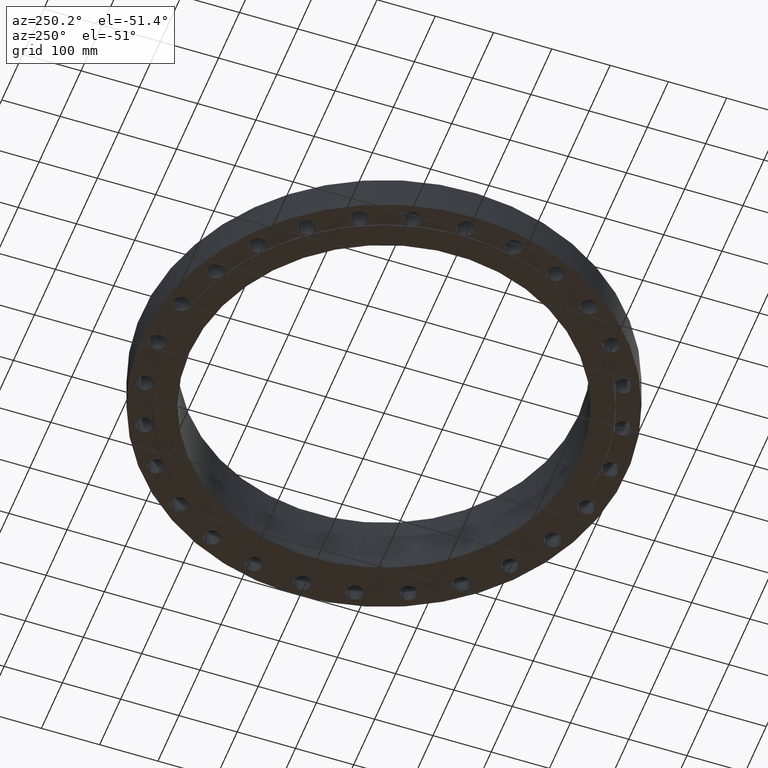
[diagram: clean part render]
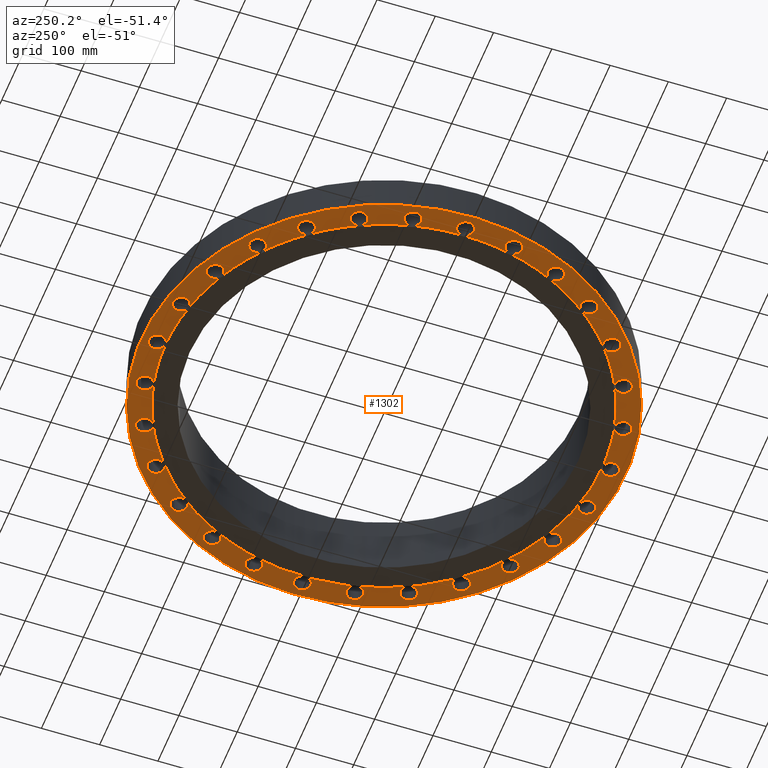
[diagram: same view with one face highlighted and labeled with its STEP entity id]
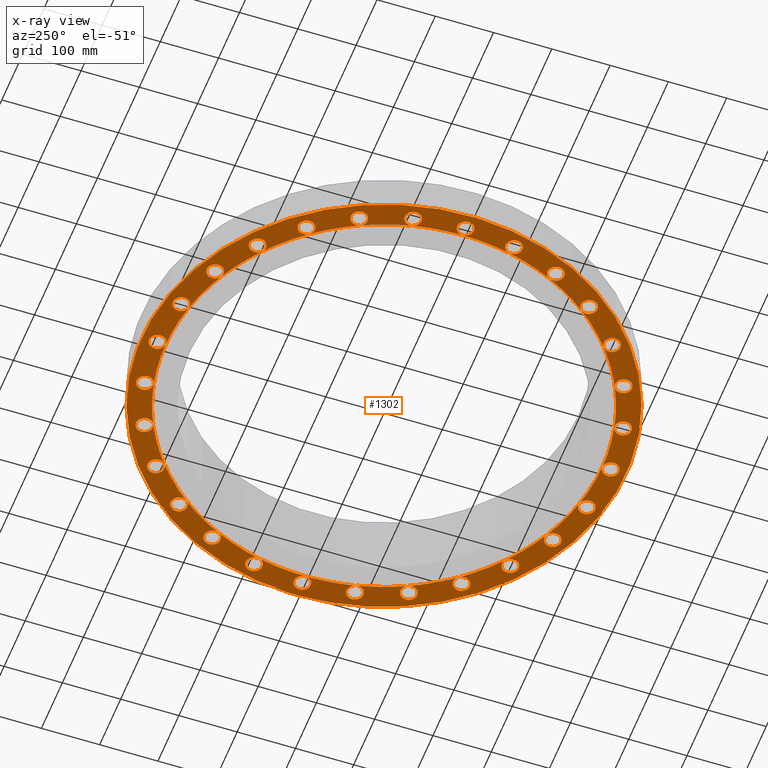
[diagram: x-ray of the same camera — body ghosted, the highlighted face saturated]
A machine part, auxiliary view. The second image highlights one B-rep face of the part: STEP entity #1302.
The next image is the same camera in x-ray: the body ghosted, the highlighted face saturated — about 0% of this face is hidden behind the body in this view.
In plain terms, the highlighted planar face has unit normal (0, 0, -1).
Its self-contained STEP definition (entity closure, byte-faithful):
#51=AXIS2_PLACEMENT_3D('Circle Axis2P3D',#49,#50,$) ;
#77=AXIS2_PLACEMENT_3D('Circle Axis2P3D',#75,#76,$) ;
#84=AXIS2_PLACEMENT_3D('Circle Axis2P3D',#82,#83,$) ;
#107=AXIS2_PLACEMENT_3D('Circle Axis2P3D',#105,#106,$) ;
#142=AXIS2_PLACEMENT_3D('Circle Axis2P3D',#140,#141,$) ;
#413=AXIS2_PLACEMENT_3D('Circle Axis2P3D',#411,#412,$) ;
#420=AXIS2_PLACEMENT_3D('Circle Axis2P3D',#418,#419,$) ;
#427=AXIS2_PLACEMENT_3D('Circle Axis2P3D',#425,#426,$) ;
#434=AXIS2_PLACEMENT_3D('Circle Axis2P3D',#432,#433,$) ;
#441=AXIS2_PLACEMENT_3D('Circle Axis2P3D',#439,#440,$) ;
#446=AXIS2_PLACEMENT_3D('Circle Axis2P3D',#444,#445,$) ;
#453=AXIS2_PLACEMENT_3D('Circle Axis2P3D',#451,#452,$) ;
#460=AXIS2_PLACEMENT_3D('Circle Axis2P3D',#458,#459,$) ;
#467=AXIS2_PLACEMENT_3D('Circle Axis2P3D',#465,#466,$) ;
#474=AXIS2_PLACEMENT_3D('Circle Axis2P3D',#472,#473,$) ;
#481=AXIS2_PLACEMENT_3D('Circle Axis2P3D',#479,#480,$) ;
#488=AXIS2_PLACEMENT_3D('Circle Axis2P3D',#486,#487,$) ;
#495=AXIS2_PLACEMENT_3D('Circle Axis2P3D',#493,#494,$) ;
#502=AXIS2_PLACEMENT_3D('Circle Axis2P3D',#500,#501,$) ;
#509=AXIS2_PLACEMENT_3D('Circle Axis2P3D',#507,#508,$) ;
#542=AXIS2_PLACEMENT_3D('Circle Axis2P3D',#540,#541,$) ;
#549=AXIS2_PLACEMENT_3D('Circle Axis2P3D',#547,#548,$) ;
#556=AXIS2_PLACEMENT_3D('Circle Axis2P3D',#554,#555,$) ;
#563=AXIS2_PLACEMENT_3D('Circle Axis2P3D',#561,#562,$) ;
#570=AXIS2_PLACEMENT_3D('Circle Axis2P3D',#568,#569,$) ;
#577=AXIS2_PLACEMENT_3D('Circle Axis2P3D',#575,#576,$) ;
#584=AXIS2_PLACEMENT_3D('Circle Axis2P3D',#582,#583,$) ;
#591=AXIS2_PLACEMENT_3D('Circle Axis2P3D',#589,#590,$) ;
#598=AXIS2_PLACEMENT_3D('Circle Axis2P3D',#596,#597,$) ;
#605=AXIS2_PLACEMENT_3D('Circle Axis2P3D',#603,#604,$) ;
#612=AXIS2_PLACEMENT_3D('Circle Axis2P3D',#610,#611,$) ;
#619=AXIS2_PLACEMENT_3D('Circle Axis2P3D',#617,#618,$) ;
#626=AXIS2_PLACEMENT_3D('Circle Axis2P3D',#624,#625,$) ;
#633=AXIS2_PLACEMENT_3D('Circle Axis2P3D',#631,#632,$) ;
#640=AXIS2_PLACEMENT_3D('Circle Axis2P3D',#638,#639,$) ;
#667=AXIS2_PLACEMENT_3D('Plane Axis2P3D',#664,#665,#666) ;
#675=AXIS2_PLACEMENT_3D('Circle Axis2P3D',#673,#674,$) ;
#682=AXIS2_PLACEMENT_3D('Circle Axis2P3D',#680,#681,$) ;
#689=AXIS2_PLACEMENT_3D('Circle Axis2P3D',#687,#688,$) ;
#694=AXIS2_PLACEMENT_3D('Circle Axis2P3D',#692,#693,$) ;
#701=AXIS2_PLACEMENT_3D('Circle Axis2P3D',#699,#700,$) ;
#708=AXIS2_PLACEMENT_3D('Circle Axis2P3D',#706,#707,$) ;
#713=AXIS2_PLACEMENT_3D('Circle Axis2P3D',#711,#712,$) ;
#720=AXIS2_PLACEMENT_3D('Circle Axis2P3D',#718,#719,$) ;
#727=AXIS2_PLACEMENT_3D('Circle Axis2P3D',#725,#726,$) ;
#732=AXIS2_PLACEMENT_3D('Circle Axis2P3D',#730,#731,$) ;
#739=AXIS2_PLACEMENT_3D('Circle Axis2P3D',#737,#738,$) ;
#746=AXIS2_PLACEMENT_3D('Circle Axis2P3D',#744,#745,$) ;
#751=AXIS2_PLACEMENT_3D('Circle Axis2P3D',#749,#750,$) ;
#758=AXIS2_PLACEMENT_3D('Circle Axis2P3D',#756,#757,$) ;
#765=AXIS2_PLACEMENT_3D('Circle Axis2P3D',#763,#764,$) ;
#770=AXIS2_PLACEMENT_3D('Circle Axis2P3D',#768,#769,$) ;
#777=AXIS2_PLACEMENT_3D('Circle Axis2P3D',#775,#776,$) ;
#784=AXIS2_PLACEMENT_3D('Circle Axis2P3D',#782,#783,$) ;
#789=AXIS2_PLACEMENT_3D('Circle Axis2P3D',#787,#788,$) ;
#796=AXIS2_PLACEMENT_3D('Circle Axis2P3D',#794,#795,$) ;
#803=AXIS2_PLACEMENT_3D('Circle Axis2P3D',#801,#802,$) ;
#808=AXIS2_PLACEMENT_3D('Circle Axis2P3D',#806,#807,$) ;
#815=AXIS2_PLACEMENT_3D('Circle Axis2P3D',#813,#814,$) ;
#822=AXIS2_PLACEMENT_3D('Circle Axis2P3D',#820,#821,$) ;
#827=AXIS2_PLACEMENT_3D('Circle Axis2P3D',#825,#826,$) ;
#834=AXIS2_PLACEMENT_3D('Circle Axis2P3D',#832,#833,$) ;
#841=AXIS2_PLACEMENT_3D('Circle Axis2P3D',#839,#840,$) ;
#846=AXIS2_PLACEMENT_3D('Circle Axis2P3D',#844,#845,$) ;
#853=AXIS2_PLACEMENT_3D('Circle Axis2P3D',#851,#852,$) ;
#860=AXIS2_PLACEMENT_3D('Circle Axis2P3D',#858,#859,$) ;
#865=AXIS2_PLACEMENT_3D('Circle Axis2P3D',#863,#864,$) ;
#872=AXIS2_PLACEMENT_3D('Circle Axis2P3D',#870,#871,$) ;
#879=AXIS2_PLACEMENT_3D('Circle Axis2P3D',#877,#878,$) ;
#884=AXIS2_PLACEMENT_3D('Circle Axis2P3D',#882,#883,$) ;
#891=AXIS2_PLACEMENT_3D('Circle Axis2P3D',#889,#890,$) ;
#898=AXIS2_PLACEMENT_3D('Circle Axis2P3D',#896,#897,$) ;
#903=AXIS2_PLACEMENT_3D('Circle Axis2P3D',#901,#902,$) ;
#910=AXIS2_PLACEMENT_3D('Circle Axis2P3D',#908,#909,$) ;
#917=AXIS2_PLACEMENT_3D('Circle Axis2P3D',#915,#916,$) ;
#922=AXIS2_PLACEMENT_3D('Circle Axis2P3D',#920,#921,$) ;
#929=AXIS2_PLACEMENT_3D('Circle Axis2P3D',#927,#928,$) ;
#936=AXIS2_PLACEMENT_3D('Circle Axis2P3D',#934,#935,$) ;
#941=AXIS2_PLACEMENT_3D('Circle Axis2P3D',#939,#940,$) ;
#948=AXIS2_PLACEMENT_3D('Circle Axis2P3D',#946,#947,$) ;
#955=AXIS2_PLACEMENT_3D('Circle Axis2P3D',#953,#954,$) ;
#960=AXIS2_PLACEMENT_3D('Circle Axis2P3D',#958,#959,$) ;
#967=AXIS2_PLACEMENT_3D('Circle Axis2P3D',#965,#966,$) ;
#974=AXIS2_PLACEMENT_3D('Circle Axis2P3D',#972,#973,$) ;
#979=AXIS2_PLACEMENT_3D('Circle Axis2P3D',#977,#978,$) ;
#986=AXIS2_PLACEMENT_3D('Circle Axis2P3D',#984,#985,$) ;
#993=AXIS2_PLACEMENT_3D('Circle Axis2P3D',#991,#992,$) ;
#998=AXIS2_PLACEMENT_3D('Circle Axis2P3D',#996,#997,$) ;
#1005=AXIS2_PLACEMENT_3D('Circle Axis2P3D',#1003,#1004,$) ;
#1012=AXIS2_PLACEMENT_3D('Circle Axis2P3D',#1010,#1011,$) ;
#1017=AXIS2_PLACEMENT_3D('Circle Axis2P3D',#1015,#1016,$) ;
#1024=AXIS2_PLACEMENT_3D('Circle Axis2P3D',#1022,#1023,$) ;
#1031=AXIS2_PLACEMENT_3D('Circle Axis2P3D',#1029,#1030,$) ;
#1036=AXIS2_PLACEMENT_3D('Circle Axis2P3D',#1034,#1035,$) ;
#1043=AXIS2_PLACEMENT_3D('Circle Axis2P3D',#1041,#1042,$) ;
#1050=AXIS2_PLACEMENT_3D('Circle Axis2P3D',#1048,#1049,$) ;
#1055=AXIS2_PLACEMENT_3D('Circle Axis2P3D',#1053,#1054,$) ;
#1062=AXIS2_PLACEMENT_3D('Circle Axis2P3D',#1060,#1061,$) ;
#1069=AXIS2_PLACEMENT_3D('Circle Axis2P3D',#1067,#1068,$) ;
#1074=AXIS2_PLACEMENT_3D('Circle Axis2P3D',#1072,#1073,$) ;
#1081=AXIS2_PLACEMENT_3D('Circle Axis2P3D',#1079,#1080,$) ;
#1088=AXIS2_PLACEMENT_3D('Circle Axis2P3D',#1086,#1087,$) ;
#1093=AXIS2_PLACEMENT_3D('Circle Axis2P3D',#1091,#1092,$) ;
#1100=AXIS2_PLACEMENT_3D('Circle Axis2P3D',#1098,#1099,$) ;
#1107=AXIS2_PLACEMENT_3D('Circle Axis2P3D',#1105,#1106,$) ;
#1112=AXIS2_PLACEMENT_3D('Circle Axis2P3D',#1110,#1111,$) ;
#1119=AXIS2_PLACEMENT_3D('Circle Axis2P3D',#1117,#1118,$) ;
#1126=AXIS2_PLACEMENT_3D('Circle Axis2P3D',#1124,#1125,$) ;
#1131=AXIS2_PLACEMENT_3D('Circle Axis2P3D',#1129,#1130,$) ;
#1138=AXIS2_PLACEMENT_3D('Circle Axis2P3D',#1136,#1137,$) ;
#1145=AXIS2_PLACEMENT_3D('Circle Axis2P3D',#1143,#1144,$) ;
#1150=AXIS2_PLACEMENT_3D('Circle Axis2P3D',#1148,#1149,$) ;
#1157=AXIS2_PLACEMENT_3D('Circle Axis2P3D',#1155,#1156,$) ;
#1164=AXIS2_PLACEMENT_3D('Circle Axis2P3D',#1162,#1163,$) ;
#1169=AXIS2_PLACEMENT_3D('Circle Axis2P3D',#1167,#1168,$) ;
#1176=AXIS2_PLACEMENT_3D('Circle Axis2P3D',#1174,#1175,$) ;
#1183=AXIS2_PLACEMENT_3D('Circle Axis2P3D',#1181,#1182,$) ;
#44=CARTESIAN_POINT('Vertex',(14.8191658526,0.270875429312,-2.79741234551E-016)) ;
#49=CARTESIAN_POINT('Axis2P3D Location',(15.3150000001,0.,0.)) ;
#53=CARTESIAN_POINT('Vertex',(15.8108341475,-0.270875429312,-2.79741234551E-016)) ;
#75=CARTESIAN_POINT('Axis2P3D Location',(15.3150000001,0.,0.)) ;
#79=CARTESIAN_POINT('Vertex',(14.7500000001,-9.48792363313E-015,1.95818864186E-015)) ;
#82=CARTESIAN_POINT('Axis2P3D Location',(15.3150000001,0.,0.)) ;
#105=CARTESIAN_POINT('Axis2P3D Location',(0.,0.,1.95818864186E-015)) ;
#109=CARTESIAN_POINT('Vertex',(-7.85059319468,-14.370414451,1.95818864186E-015)) ;
#111=CARTESIAN_POINT('Vertex',(7.85059319468,14.370414451,1.95818864186E-015)) ;
#140=CARTESIAN_POINT('Axis2P3D Location',(0.,0.,1.95818864186E-015)) ;
#408=CARTESIAN_POINT('Vertex',(7.07152669444,12.9443427879,1.95818864186E-015)) ;
#411=CARTESIAN_POINT('Axis2P3D Location',(0.,0.,1.95818864186E-015)) ;
#415=CARTESIAN_POINT('Vertex',(9.19647457745,11.5320143664,0.)) ;
#418=CARTESIAN_POINT('Axis2P3D Location',(0.,0.,1.95818864186E-015)) ;
#422=CARTESIAN_POINT('Vertex',(11.5320143664,9.19647457745,0.)) ;
#425=CARTESIAN_POINT('Axis2P3D Location',(0.,0.,1.95818864186E-015)) ;
#429=CARTESIAN_POINT('Vertex',(13.2892908016,6.39978515201,0.)) ;
#432=CARTESIAN_POINT('Axis2P3D Location',(0.,0.,1.95818864186E-015)) ;
#436=CARTESIAN_POINT('Vertex',(14.3801867047,3.28218377587,0.)) ;
#439=CARTESIAN_POINT('Axis2P3D Location',(0.,0.,1.95818864186E-015)) ;
#444=CARTESIAN_POINT('Axis2P3D Location',(0.,0.,1.95818864186E-015)) ;
#448=CARTESIAN_POINT('Vertex',(14.3801867047,-3.28218377587,0.)) ;
#451=CARTESIAN_POINT('Axis2P3D Location',(0.,0.,1.95818864186E-015)) ;
#455=CARTESIAN_POINT('Vertex',(13.2892908016,-6.39978515201,0.)) ;
#458=CARTESIAN_POINT('Axis2P3D Location',(0.,0.,1.95818864186E-015)) ;
#462=CARTESIAN_POINT('Vertex',(11.5320143664,-9.19647457745,0.)) ;
#465=CARTESIAN_POINT('Axis2P3D Location',(0.,0.,1.95818864186E-015)) ;
#469=CARTESIAN_POINT('Vertex',(9.19647457745,-11.5320143664,0.)) ;
#472=CARTESIAN_POINT('Axis2P3D Location',(0.,0.,1.95818864186E-015)) ;
#476=CARTESIAN_POINT('Vertex',(6.39978515201,-13.2892908016,0.)) ;
#479=CARTESIAN_POINT('Axis2P3D Location',(0.,0.,1.95818864186E-015)) ;
#483=CARTESIAN_POINT('Vertex',(3.28218377587,-14.3801867047,0.)) ;
#486=CARTESIAN_POINT('Axis2P3D Location',(0.,0.,1.95818864186E-015)) ;
#490=CARTESIAN_POINT('Vertex',(3.32304130702E-015,-14.7500000001,0.)) ;
#493=CARTESIAN_POINT('Axis2P3D Location',(0.,0.,1.95818864186E-015)) ;
#497=CARTESIAN_POINT('Vertex',(-3.28218377587,-14.3801867047,0.)) ;
#500=CARTESIAN_POINT('Axis2P3D Location',(0.,0.,1.95818864186E-015)) ;
#504=CARTESIAN_POINT('Vertex',(-6.39978515201,-13.2892908016,0.)) ;
#507=CARTESIAN_POINT('Axis2P3D Location',(0.,0.,1.95818864186E-015)) ;
#511=CARTESIAN_POINT('Vertex',(-7.07152669444,-12.9443427879,1.95818864186E-015)) ;
#540=CARTESIAN_POINT('Axis2P3D Location',(0.,0.,1.95818864186E-015)) ;
#544=CARTESIAN_POINT('Vertex',(-9.19647457745,-11.5320143664,0.)) ;
#547=CARTESIAN_POINT('Axis2P3D Location',(0.,0.,1.95818864186E-015)) ;
#551=CARTESIAN_POINT('Vertex',(-11.5320143664,-9.19647457745,0.)) ;
#554=CARTESIAN_POINT('Axis2P3D Location',(0.,0.,1.95818864186E-015)) ;
#558=CARTESIAN_POINT('Vertex',(-13.2892908016,-6.39978515201,0.)) ;
#561=CARTESIAN_POINT('Axis2P3D Location',(0.,0.,1.95818864186E-015)) ;
#565=CARTESIAN_POINT('Vertex',(-14.3801867047,-3.28218377587,0.)) ;
#568=CARTESIAN_POINT('Axis2P3D Location',(0.,0.,1.95818864186E-015)) ;
#572=CARTESIAN_POINT('Vertex',(-14.7500000001,-8.95171950564E-015,0.)) ;
#575=CARTESIAN_POINT('Axis2P3D Location',(0.,0.,1.95818864186E-015)) ;
#579=CARTESIAN_POINT('Vertex',(-14.3801867047,3.28218377587,0.)) ;
#582=CARTESIAN_POINT('Axis2P3D Location',(0.,0.,1.95818864186E-015)) ;
#586=CARTESIAN_POINT('Vertex',(-13.2892908016,6.39978515201,0.)) ;
#589=CARTESIAN_POINT('Axis2P3D Location',(0.,0.,1.95818864186E-015)) ;
#593=CARTESIAN_POINT('Vertex',(-11.5320143664,9.19647457745,0.)) ;
#596=CARTESIAN_POINT('Axis2P3D Location',(0.,0.,1.95818864186E-015)) ;
#600=CARTESIAN_POINT('Vertex',(-9.19647457745,11.5320143664,0.)) ;
#603=CARTESIAN_POINT('Axis2P3D Location',(0.,0.,1.95818864186E-015)) ;
#607=CARTESIAN_POINT('Vertex',(-6.39978515201,13.2892908016,0.)) ;
#610=CARTESIAN_POINT('Axis2P3D Location',(0.,0.,1.95818864186E-015)) ;
#614=CARTESIAN_POINT('Vertex',(-3.28218377587,14.3801867047,0.)) ;
#617=CARTESIAN_POINT('Axis2P3D Location',(0.,0.,1.95818864186E-015)) ;
#621=CARTESIAN_POINT('Vertex',(-2.00728685406E-015,14.7500000001,0.)) ;
#624=CARTESIAN_POINT('Axis2P3D Location',(0.,0.,1.95818864186E-015)) ;
#628=CARTESIAN_POINT('Vertex',(3.28218377587,14.3801867047,0.)) ;
#631=CARTESIAN_POINT('Axis2P3D Location',(0.,0.,1.95818864186E-015)) ;
#635=CARTESIAN_POINT('Vertex',(6.39978515201,13.2892908016,0.)) ;
#638=CARTESIAN_POINT('Axis2P3D Location',(0.,0.,1.95818864186E-015)) ;
#664=CARTESIAN_POINT('Axis2P3D Location',(0.,14.7500000001,0.)) ;
#673=CARTESIAN_POINT('Axis2P3D Location',(13.798338212,-6.64492946461,0.)) ;
#677=CARTESIAN_POINT('Vertex',(14.1275408984,-7.10411416739,-2.79741234551E-016)) ;
#680=CARTESIAN_POINT('Axis2P3D Location',(13.798338212,-6.64492946461,0.)) ;
#684=CARTESIAN_POINT('Vertex',(13.4691355256,-6.18574476184,0.)) ;
#687=CARTESIAN_POINT('Axis2P3D Location',(13.798338212,-6.64492946461,0.)) ;
#692=CARTESIAN_POINT('Axis2P3D Location',(14.9310209751,-3.40790810355,0.)) ;
#696=CARTESIAN_POINT('Vertex',(15.3541480718,-3.7823255979,-2.79741234551E-016)) ;
#699=CARTESIAN_POINT('Axis2P3D Location',(14.9310209751,-3.40790810355,0.)) ;
#703=CARTESIAN_POINT('Vertex',(14.5078938785,-3.03349060921,0.)) ;
#706=CARTESIAN_POINT('Axis2P3D Location',(14.9310209751,-3.40790810355,0.)) ;
#711=CARTESIAN_POINT('Axis2P3D Location',(14.9310209751,3.40790810355,0.)) ;
#715=CARTESIAN_POINT('Vertex',(15.4746989788,3.25415756438,-2.79741234551E-016)) ;
#718=CARTESIAN_POINT('Axis2P3D Location',(14.9310209751,3.40790810355,0.)) ;
#722=CARTESIAN_POINT('Vertex',(14.3873429714,3.56165864273,0.)) ;
#725=CARTESIAN_POINT('Axis2P3D Location',(14.9310209751,3.40790810355,0.)) ;
#730=CARTESIAN_POINT('Axis2P3D Location',(13.798338212,6.64492946461,0.)) ;
#734=CARTESIAN_POINT('Vertex',(14.3625977866,6.61601350961,-2.79741234551E-016)) ;
#737=CARTESIAN_POINT('Axis2P3D Location',(13.798338212,6.64492946461,0.)) ;
#741=CARTESIAN_POINT('Vertex',(13.2340786374,6.67384541962,0.)) ;
#744=CARTESIAN_POINT('Axis2P3D Location',(13.798338212,6.64492946461,0.)) ;
#749=CARTESIAN_POINT('Axis2P3D Location',(11.973749154,9.5487463155,0.)) ;
#753=CARTESIAN_POINT('Vertex',(12.5302959684,9.6461149114,-2.79741234551E-016)) ;
#756=CARTESIAN_POINT('Axis2P3D Location',(11.973749154,9.5487463155,0.)) ;
#760=CARTESIAN_POINT('Vertex',(11.4172023397,9.45137771961,0.)) ;
#763=CARTESIAN_POINT('Axis2P3D Location',(11.973749154,9.5487463155,0.)) ;
#768=CARTESIAN_POINT('Axis2P3D Location',(9.5487463155,11.973749154,0.)) ;
#772=CARTESIAN_POINT('Vertex',(10.0696727883,12.1925198329,-2.79741234551E-016)) ;
#775=CARTESIAN_POINT('Axis2P3D Location',(9.5487463155,11.973749154,0.)) ;
#779=CARTESIAN_POINT('Vertex',(9.02781984268,11.7549784752,0.)) ;
#782=CARTESIAN_POINT('Axis2P3D Location',(9.5487463155,11.973749154,0.)) ;
#787=CARTESIAN_POINT('Axis2P3D Location',(6.64492946461,13.798338212,0.)) ;
#791=CARTESIAN_POINT('Vertex',(7.10411416739,14.1275408984,-2.79741234551E-016)) ;
#794=CARTESIAN_POINT('Axis2P3D Location',(6.64492946461,13.798338212,0.)) ;
#798=CARTESIAN_POINT('Vertex',(6.18574476184,13.4691355256,0.)) ;
#801=CARTESIAN_POINT('Axis2P3D Location',(6.64492946461,13.798338212,0.)) ;
#806=CARTESIAN_POINT('Axis2P3D Location',(3.40790810355,14.9310209751,0.)) ;
#810=CARTESIAN_POINT('Vertex',(3.7823255979,15.3541480718,-2.79741234551E-016)) ;
#813=CARTESIAN_POINT('Axis2P3D Location',(3.40790810355,14.9310209751,0.)) ;
#817=CARTESIAN_POINT('Vertex',(3.03349060921,14.5078938785,0.)) ;
#820=CARTESIAN_POINT('Axis2P3D Location',(3.40790810355,14.9310209751,0.)) ;
#825=CARTESIAN_POINT('Axis2P3D Location',(-1.67844740731E-015,15.3150000001,0.)) ;
#829=CARTESIAN_POINT('Vertex',(0.270875429312,15.8108341475,-2.79741234551E-016)) ;
#832=CARTESIAN_POINT('Axis2P3D Location',(-3.56670074053E-015,15.3150000001,0.)) ;
#836=CARTESIAN_POINT('Vertex',(-0.270875429312,14.8191658526,0.)) ;
#839=CARTESIAN_POINT('Axis2P3D Location',(-1.67844740731E-015,15.3150000001,0.)) ;
#844=CARTESIAN_POINT('Axis2P3D Location',(-3.40790810355,14.9310209751,0.)) ;
#848=CARTESIAN_POINT('Vertex',(-3.25415756438,15.4746989788,-2.79741234551E-016)) ;
#851=CARTESIAN_POINT('Axis2P3D Location',(-3.40790810355,14.9310209751,0.)) ;
#855=CARTESIAN_POINT('Vertex',(-3.56165864273,14.3873429714,0.)) ;
#858=CARTESIAN_POINT('Axis2P3D Location',(-3.40790810355,14.9310209751,0.)) ;
#863=CARTESIAN_POINT('Axis2P3D Location',(-6.64492946461,13.798338212,0.)) ;
#867=CARTESIAN_POINT('Vertex',(-6.61601350961,14.3625977866,-2.79741234551E-016)) ;
#870=CARTESIAN_POINT('Axis2P3D Location',(-6.64492946461,13.798338212,0.)) ;
#874=CARTESIAN_POINT('Vertex',(-6.67384541962,13.2340786374,0.)) ;
#877=CARTESIAN_POINT('Axis2P3D Location',(-6.64492946461,13.798338212,0.)) ;
#882=CARTESIAN_POINT('Axis2P3D Location',(-9.5487463155,11.973749154,0.)) ;
#886=CARTESIAN_POINT('Vertex',(-9.6461149114,12.5302959684,-2.79741234551E-016)) ;
#889=CARTESIAN_POINT('Axis2P3D Location',(-9.5487463155,11.973749154,0.)) ;
#893=CARTESIAN_POINT('Vertex',(-9.45137771961,11.4172023397,0.)) ;
#896=CARTESIAN_POINT('Axis2P3D Location',(-9.5487463155,11.973749154,0.)) ;
#901=CARTESIAN_POINT('Axis2P3D Location',(-11.973749154,9.5487463155,0.)) ;
#905=CARTESIAN_POINT('Vertex',(-12.1925198329,10.0696727883,-2.79741234551E-016)) ;
#908=CARTESIAN_POINT('Axis2P3D Location',(-11.973749154,9.5487463155,0.)) ;
#912=CARTESIAN_POINT('Vertex',(-11.7549784752,9.02781984268,0.)) ;
#915=CARTESIAN_POINT('Axis2P3D Location',(-11.973749154,9.5487463155,0.)) ;
#920=CARTESIAN_POINT('Axis2P3D Location',(-13.798338212,6.64492946461,0.)) ;
#924=CARTESIAN_POINT('Vertex',(-14.1275408984,7.10411416739,-2.79741234551E-016)) ;
#927=CARTESIAN_POINT('Axis2P3D Location',(-13.798338212,6.64492946461,0.)) ;
#931=CARTESIAN_POINT('Vertex',(-13.4691355256,6.18574476184,0.)) ;
#934=CARTESIAN_POINT('Axis2P3D Location',(-13.798338212,6.64492946461,0.)) ;
#939=CARTESIAN_POINT('Axis2P3D Location',(-14.9310209751,3.40790810355,0.)) ;
#943=CARTESIAN_POINT('Vertex',(-15.3541480718,3.7823255979,-2.79741234551E-016)) ;
#946=CARTESIAN_POINT('Axis2P3D Location',(-14.9310209751,3.40790810355,0.)) ;
#950=CARTESIAN_POINT('Vertex',(-14.5078938785,3.03349060921,0.)) ;
#953=CARTESIAN_POINT('Axis2P3D Location',(-14.9310209751,3.40790810355,0.)) ;
#958=CARTESIAN_POINT('Axis2P3D Location',(-15.3150000001,-8.95171950564E-015,0.)) ;
#962=CARTESIAN_POINT('Vertex',(-15.8108341475,0.270875429312,-2.79741234551E-016)) ;
#965=CARTESIAN_POINT('Axis2P3D Location',(-15.3150000001,-8.95171950564E-015,0.)) ;
#969=CARTESIAN_POINT('Vertex',(-14.8191658526,-0.270875429312,0.)) ;
#972=CARTESIAN_POINT('Axis2P3D Location',(-15.3150000001,-8.95171950564E-015,0.)) ;
#977=CARTESIAN_POINT('Axis2P3D Location',(-14.9310209751,-3.40790810355,0.)) ;
#981=CARTESIAN_POINT('Vertex',(-15.4746989788,-3.25415756438,-2.79741234551E-016)) ;
#984=CARTESIAN_POINT('Axis2P3D Location',(-14.9310209751,-3.40790810355,0.)) ;
#988=CARTESIAN_POINT('Vertex',(-14.3873429714,-3.56165864273,0.)) ;
#991=CARTESIAN_POINT('Axis2P3D Location',(-14.9310209751,-3.40790810355,0.)) ;
#996=CARTESIAN_POINT('Axis2P3D Location',(-13.798338212,-6.64492946461,0.)) ;
#1000=CARTESIAN_POINT('Vertex',(-14.3625977866,-6.61601350961,-2.51767111096E-015)) ;
#1003=CARTESIAN_POINT('Axis2P3D Location',(-13.798338212,-6.64492946461,0.)) ;
#1007=CARTESIAN_POINT('Vertex',(-13.2340786374,-6.67384541962,0.)) ;
#1010=CARTESIAN_POINT('Axis2P3D Location',(-13.798338212,-6.64492946461,0.)) ;
#1015=CARTESIAN_POINT('Axis2P3D Location',(-11.973749154,-9.5487463155,0.)) ;
#1019=CARTESIAN_POINT('Vertex',(-12.5302959684,-9.6461149114,-2.79741234551E-016)) ;
#1022=CARTESIAN_POINT('Axis2P3D Location',(-11.973749154,-9.5487463155,0.)) ;
#1026=CARTESIAN_POINT('Vertex',(-11.4172023397,-9.45137771961,0.)) ;
#1029=CARTESIAN_POINT('Axis2P3D Location',(-11.973749154,-9.5487463155,0.)) ;
#1034=CARTESIAN_POINT('Axis2P3D Location',(-9.5487463155,-11.973749154,0.)) ;
#1038=CARTESIAN_POINT('Vertex',(-10.0696727883,-12.1925198329,-2.79741234551E-016)) ;
#1041=CARTESIAN_POINT('Axis2P3D Location',(-9.5487463155,-11.973749154,0.)) ;
#1045=CARTESIAN_POINT('Vertex',(-9.02781984268,-11.7549784752,0.)) ;
#1048=CARTESIAN_POINT('Axis2P3D Location',(-9.5487463155,-11.973749154,0.)) ;
#1053=CARTESIAN_POINT('Axis2P3D Location',(-6.64492946461,-13.798338212,0.)) ;
#1057=CARTESIAN_POINT('Vertex',(-7.10411416739,-14.1275408984,-2.79741234551E-016)) ;
#1060=CARTESIAN_POINT('Axis2P3D Location',(-6.64492946461,-13.798338212,0.)) ;
#1064=CARTESIAN_POINT('Vertex',(-6.18574476184,-13.4691355256,0.)) ;
#1067=CARTESIAN_POINT('Axis2P3D Location',(-6.64492946461,-13.798338212,0.)) ;
#1072=CARTESIAN_POINT('Axis2P3D Location',(-3.40790810355,-14.9310209751,0.)) ;
#1076=CARTESIAN_POINT('Vertex',(-3.7823255979,-15.3541480718,-2.51767111096E-015)) ;
#1079=CARTESIAN_POINT('Axis2P3D Location',(-3.40790810355,-14.9310209751,0.)) ;
#1083=CARTESIAN_POINT('Vertex',(-3.03349060921,-14.5078938785,0.)) ;
#1086=CARTESIAN_POINT('Axis2P3D Location',(-3.40790810355,-14.9310209751,0.)) ;
#1091=CARTESIAN_POINT('Axis2P3D Location',(3.42683012325E-015,-15.3150000001,0.)) ;
#1095=CARTESIAN_POINT('Vertex',(-0.270875429312,-15.8108341475,-2.79741234551E-016)) ;
#1098=CARTESIAN_POINT('Axis2P3D Location',(5.52488938239E-015,-15.3150000001,0.)) ;
#1102=CARTESIAN_POINT('Vertex',(0.270875429312,-14.8191658526,0.)) ;
#1105=CARTESIAN_POINT('Axis2P3D Location',(3.42683012325E-015,-15.3150000001,0.)) ;
#1110=CARTESIAN_POINT('Axis2P3D Location',(3.40790810355,-14.9310209751,0.)) ;
#1114=CARTESIAN_POINT('Vertex',(3.25415756438,-15.4746989788,-2.79741234551E-016)) ;
#1117=CARTESIAN_POINT('Axis2P3D Location',(3.40790810355,-14.9310209751,0.)) ;
#1121=CARTESIAN_POINT('Vertex',(3.56165864273,-14.3873429714,0.)) ;
#1124=CARTESIAN_POINT('Axis2P3D Location',(3.40790810355,-14.9310209751,0.)) ;
#1129=CARTESIAN_POINT('Axis2P3D Location',(6.64492946461,-13.798338212,0.)) ;
#1133=CARTESIAN_POINT('Vertex',(6.61601350961,-14.3625977866,-2.79741234551E-016)) ;
#1136=CARTESIAN_POINT('Axis2P3D Location',(6.64492946461,-13.798338212,0.)) ;
#1140=CARTESIAN_POINT('Vertex',(6.67384541962,-13.2340786374,0.)) ;
#1143=CARTESIAN_POINT('Axis2P3D Location',(6.64492946461,-13.798338212,0.)) ;
#1148=CARTESIAN_POINT('Axis2P3D Location',(9.5487463155,-11.973749154,0.)) ;
#1152=CARTESIAN_POINT('Vertex',(9.6461149114,-12.5302959684,-2.79741234551E-016)) ;
#1155=CARTESIAN_POINT('Axis2P3D Location',(9.5487463155,-11.973749154,0.)) ;
#1159=CARTESIAN_POINT('Vertex',(9.45137771961,-11.4172023397,0.)) ;
#1162=CARTESIAN_POINT('Axis2P3D Location',(9.5487463155,-11.973749154,0.)) ;
#1167=CARTESIAN_POINT('Axis2P3D Location',(11.973749154,-9.5487463155,0.)) ;
#1171=CARTESIAN_POINT('Vertex',(12.1925198329,-10.0696727883,-2.51767111096E-015)) ;
#1174=CARTESIAN_POINT('Axis2P3D Location',(11.973749154,-9.5487463155,0.)) ;
#1178=CARTESIAN_POINT('Vertex',(11.7549784752,-9.02781984268,0.)) ;
#1181=CARTESIAN_POINT('Axis2P3D Location',(11.973749154,-9.5487463155,0.)) ;
#50=DIRECTION('Axis2P3D Direction',(0.,-0.,-0.0393700787402)) ;
#76=DIRECTION('Axis2P3D Direction',(0.,-0.,-0.0393700787402)) ;
#83=DIRECTION('Axis2P3D Direction',(0.,-0.,-0.0393700787402)) ;
#106=DIRECTION('Axis2P3D Direction',(0.,0.,-0.0393700787402)) ;
#141=DIRECTION('Axis2P3D Direction',(0.,0.,-0.0393700787402)) ;
#412=DIRECTION('Axis2P3D Direction',(0.,0.,-0.0393700787402)) ;
#419=DIRECTION('Axis2P3D Direction',(0.,0.,-0.0393700787402)) ;
#426=DIRECTION('Axis2P3D Direction',(0.,0.,-0.0393700787402)) ;
#433=DIRECTION('Axis2P3D Direction',(0.,0.,-0.0393700787402)) ;
#440=DIRECTION('Axis2P3D Direction',(0.,0.,-0.0393700787402)) ;
#445=DIRECTION('Axis2P3D Direction',(0.,0.,-0.0393700787402)) ;
#452=DIRECTION('Axis2P3D Direction',(0.,0.,-0.0393700787402)) ;
#459=DIRECTION('Axis2P3D Direction',(0.,0.,-0.0393700787402)) ;
#466=DIRECTION('Axis2P3D Direction',(0.,0.,-0.0393700787402)) ;
#473=DIRECTION('Axis2P3D Direction',(0.,0.,-0.0393700787402)) ;
#480=DIRECTION('Axis2P3D Direction',(0.,0.,-0.0393700787402)) ;
#487=DIRECTION('Axis2P3D Direction',(0.,0.,-0.0393700787402)) ;
#494=DIRECTION('Axis2P3D Direction',(0.,0.,-0.0393700787402)) ;
#501=DIRECTION('Axis2P3D Direction',(0.,0.,-0.0393700787402)) ;
#508=DIRECTION('Axis2P3D Direction',(0.,0.,-0.0393700787402)) ;
#541=DIRECTION('Axis2P3D Direction',(0.,0.,-0.0393700787402)) ;
#548=DIRECTION('Axis2P3D Direction',(0.,0.,-0.0393700787402)) ;
#555=DIRECTION('Axis2P3D Direction',(0.,0.,-0.0393700787402)) ;
#562=DIRECTION('Axis2P3D Direction',(0.,0.,-0.0393700787402)) ;
#569=DIRECTION('Axis2P3D Direction',(0.,0.,-0.0393700787402)) ;
#576=DIRECTION('Axis2P3D Direction',(0.,0.,-0.0393700787402)) ;
#583=DIRECTION('Axis2P3D Direction',(0.,0.,-0.0393700787402)) ;
#590=DIRECTION('Axis2P3D Direction',(0.,0.,-0.0393700787402)) ;
#597=DIRECTION('Axis2P3D Direction',(0.,0.,-0.0393700787402)) ;
#604=DIRECTION('Axis2P3D Direction',(0.,0.,-0.0393700787402)) ;
#611=DIRECTION('Axis2P3D Direction',(0.,0.,-0.0393700787402)) ;
#618=DIRECTION('Axis2P3D Direction',(0.,0.,-0.0393700787402)) ;
#625=DIRECTION('Axis2P3D Direction',(0.,0.,-0.0393700787402)) ;
#632=DIRECTION('Axis2P3D Direction',(0.,0.,-0.0393700787402)) ;
#639=DIRECTION('Axis2P3D Direction',(0.,0.,-0.0393700787402)) ;
#665=DIRECTION('Axis2P3D Direction',(0.,0.,-0.0393700787402)) ;
#666=DIRECTION('Axis2P3D XDirection',(0.0393700787402,0.,0.)) ;
#674=DIRECTION('Axis2P3D Direction',(0.,0.,-0.0393700787402)) ;
#681=DIRECTION('Axis2P3D Direction',(0.,0.,-0.0393700787402)) ;
#688=DIRECTION('Axis2P3D Direction',(0.,0.,-0.0393700787402)) ;
#693=DIRECTION('Axis2P3D Direction',(0.,0.,-0.0393700787402)) ;
#700=DIRECTION('Axis2P3D Direction',(0.,0.,-0.0393700787402)) ;
#707=DIRECTION('Axis2P3D Direction',(0.,0.,-0.0393700787402)) ;
#712=DIRECTION('Axis2P3D Direction',(0.,0.,-0.0393700787402)) ;
#719=DIRECTION('Axis2P3D Direction',(0.,0.,-0.0393700787402)) ;
#726=DIRECTION('Axis2P3D Direction',(0.,0.,-0.0393700787402)) ;
#731=DIRECTION('Axis2P3D Direction',(0.,0.,-0.0393700787402)) ;
#738=DIRECTION('Axis2P3D Direction',(0.,0.,-0.0393700787402)) ;
#745=DIRECTION('Axis2P3D Direction',(0.,0.,-0.0393700787402)) ;
#750=DIRECTION('Axis2P3D Direction',(0.,0.,-0.0393700787402)) ;
#757=DIRECTION('Axis2P3D Direction',(0.,0.,-0.0393700787402)) ;
#764=DIRECTION('Axis2P3D Direction',(0.,0.,-0.0393700787402)) ;
#769=DIRECTION('Axis2P3D Direction',(0.,0.,-0.0393700787402)) ;
#776=DIRECTION('Axis2P3D Direction',(0.,0.,-0.0393700787402)) ;
#783=DIRECTION('Axis2P3D Direction',(0.,0.,-0.0393700787402)) ;
#788=DIRECTION('Axis2P3D Direction',(0.,0.,-0.0393700787402)) ;
#795=DIRECTION('Axis2P3D Direction',(0.,0.,-0.0393700787402)) ;
#802=DIRECTION('Axis2P3D Direction',(0.,0.,-0.0393700787402)) ;
#807=DIRECTION('Axis2P3D Direction',(0.,0.,-0.0393700787402)) ;
#814=DIRECTION('Axis2P3D Direction',(0.,0.,-0.0393700787402)) ;
#821=DIRECTION('Axis2P3D Direction',(0.,0.,-0.0393700787402)) ;
#826=DIRECTION('Axis2P3D Direction',(0.,0.,-0.0393700787402)) ;
#833=DIRECTION('Axis2P3D Direction',(0.,0.,-0.0393700787402)) ;
#840=DIRECTION('Axis2P3D Direction',(0.,0.,-0.0393700787402)) ;
#845=DIRECTION('Axis2P3D Direction',(0.,0.,-0.0393700787402)) ;
#852=DIRECTION('Axis2P3D Direction',(0.,0.,-0.0393700787402)) ;
#859=DIRECTION('Axis2P3D Direction',(0.,0.,-0.0393700787402)) ;
#864=DIRECTION('Axis2P3D Direction',(0.,0.,-0.0393700787402)) ;
#871=DIRECTION('Axis2P3D Direction',(0.,0.,-0.0393700787402)) ;
#878=DIRECTION('Axis2P3D Direction',(0.,0.,-0.0393700787402)) ;
#883=DIRECTION('Axis2P3D Direction',(0.,0.,-0.0393700787402)) ;
#890=DIRECTION('Axis2P3D Direction',(0.,0.,-0.0393700787402)) ;
#897=DIRECTION('Axis2P3D Direction',(0.,0.,-0.0393700787402)) ;
#902=DIRECTION('Axis2P3D Direction',(0.,0.,-0.0393700787402)) ;
#909=DIRECTION('Axis2P3D Direction',(0.,0.,-0.0393700787402)) ;
#916=DIRECTION('Axis2P3D Direction',(0.,0.,-0.0393700787402)) ;
#921=DIRECTION('Axis2P3D Direction',(0.,0.,-0.0393700787402)) ;
#928=DIRECTION('Axis2P3D Direction',(0.,0.,-0.0393700787402)) ;
#935=DIRECTION('Axis2P3D Direction',(0.,0.,-0.0393700787402)) ;
#940=DIRECTION('Axis2P3D Direction',(0.,0.,-0.0393700787402)) ;
#947=DIRECTION('Axis2P3D Direction',(0.,0.,-0.0393700787402)) ;
#954=DIRECTION('Axis2P3D Direction',(0.,0.,-0.0393700787402)) ;
#959=DIRECTION('Axis2P3D Direction',(0.,0.,-0.0393700787402)) ;
#966=DIRECTION('Axis2P3D Direction',(0.,0.,-0.0393700787402)) ;
#973=DIRECTION('Axis2P3D Direction',(0.,0.,-0.0393700787402)) ;
#978=DIRECTION('Axis2P3D Direction',(0.,0.,-0.0393700787402)) ;
#985=DIRECTION('Axis2P3D Direction',(0.,0.,-0.0393700787402)) ;
#992=DIRECTION('Axis2P3D Direction',(0.,0.,-0.0393700787402)) ;
#997=DIRECTION('Axis2P3D Direction',(0.,0.,-0.0393700787402)) ;
#1004=DIRECTION('Axis2P3D Direction',(0.,0.,-0.0393700787402)) ;
#1011=DIRECTION('Axis2P3D Direction',(0.,0.,-0.0393700787402)) ;
#1016=DIRECTION('Axis2P3D Direction',(0.,0.,-0.0393700787402)) ;
#1023=DIRECTION('Axis2P3D Direction',(0.,0.,-0.0393700787402)) ;
#1030=DIRECTION('Axis2P3D Direction',(0.,0.,-0.0393700787402)) ;
#1035=DIRECTION('Axis2P3D Direction',(0.,0.,-0.0393700787402)) ;
#1042=DIRECTION('Axis2P3D Direction',(0.,0.,-0.0393700787402)) ;
#1049=DIRECTION('Axis2P3D Direction',(0.,0.,-0.0393700787402)) ;
#1054=DIRECTION('Axis2P3D Direction',(0.,0.,-0.0393700787402)) ;
#1061=DIRECTION('Axis2P3D Direction',(0.,0.,-0.0393700787402)) ;
#1068=DIRECTION('Axis2P3D Direction',(0.,0.,-0.0393700787402)) ;
#1073=DIRECTION('Axis2P3D Direction',(0.,0.,-0.0393700787402)) ;
#1080=DIRECTION('Axis2P3D Direction',(0.,0.,-0.0393700787402)) ;
#1087=DIRECTION('Axis2P3D Direction',(0.,0.,-0.0393700787402)) ;
#1092=DIRECTION('Axis2P3D Direction',(0.,0.,-0.0393700787402)) ;
#1099=DIRECTION('Axis2P3D Direction',(0.,0.,-0.0393700787402)) ;
#1106=DIRECTION('Axis2P3D Direction',(0.,0.,-0.0393700787402)) ;
#1111=DIRECTION('Axis2P3D Direction',(0.,0.,-0.0393700787402)) ;
#1118=DIRECTION('Axis2P3D Direction',(0.,0.,-0.0393700787402)) ;
#1125=DIRECTION('Axis2P3D Direction',(0.,0.,-0.0393700787402)) ;
#1130=DIRECTION('Axis2P3D Direction',(0.,0.,-0.0393700787402)) ;
#1137=DIRECTION('Axis2P3D Direction',(0.,0.,-0.0393700787402)) ;
#1144=DIRECTION('Axis2P3D Direction',(0.,0.,-0.0393700787402)) ;
#1149=DIRECTION('Axis2P3D Direction',(0.,0.,-0.0393700787402)) ;
#1156=DIRECTION('Axis2P3D Direction',(0.,0.,-0.0393700787402)) ;
#1163=DIRECTION('Axis2P3D Direction',(0.,0.,-0.0393700787402)) ;
#1168=DIRECTION('Axis2P3D Direction',(0.,0.,-0.0393700787402)) ;
#1175=DIRECTION('Axis2P3D Direction',(0.,0.,-0.0393700787402)) ;
#1182=DIRECTION('Axis2P3D Direction',(0.,0.,-0.0393700787402)) ;
#670=ORIENTED_EDGE('',*,*,#113,.T.) ;
#671=ORIENTED_EDGE('',*,*,#144,.T.) ;
#1187=ORIENTED_EDGE('',*,*,#679,.F.) ;
#1188=ORIENTED_EDGE('',*,*,#686,.F.) ;
#1189=ORIENTED_EDGE('',*,*,#691,.F.) ;
#1190=ORIENTED_EDGE('',*,*,#457,.F.) ;
#1191=ORIENTED_EDGE('',*,*,#698,.F.) ;
#1192=ORIENTED_EDGE('',*,*,#705,.F.) ;
#1193=ORIENTED_EDGE('',*,*,#710,.F.) ;
#1194=ORIENTED_EDGE('',*,*,#450,.F.) ;
#1195=ORIENTED_EDGE('',*,*,#81,.F.) ;
#1196=ORIENTED_EDGE('',*,*,#55,.F.) ;
#1197=ORIENTED_EDGE('',*,*,#86,.F.) ;
#1198=ORIENTED_EDGE('',*,*,#443,.F.) ;
#1199=ORIENTED_EDGE('',*,*,#717,.F.) ;
#1200=ORIENTED_EDGE('',*,*,#724,.F.) ;
#1201=ORIENTED_EDGE('',*,*,#729,.F.) ;
#1202=ORIENTED_EDGE('',*,*,#438,.F.) ;
#1203=ORIENTED_EDGE('',*,*,#736,.F.) ;
#1204=ORIENTED_EDGE('',*,*,#743,.F.) ;
#1205=ORIENTED_EDGE('',*,*,#748,.F.) ;
#1206=ORIENTED_EDGE('',*,*,#431,.F.) ;
#1207=ORIENTED_EDGE('',*,*,#755,.F.) ;
#1208=ORIENTED_EDGE('',*,*,#762,.F.) ;
#1209=ORIENTED_EDGE('',*,*,#767,.F.) ;
#1210=ORIENTED_EDGE('',*,*,#424,.F.) ;
#1211=ORIENTED_EDGE('',*,*,#774,.F.) ;
#1212=ORIENTED_EDGE('',*,*,#781,.F.) ;
#1213=ORIENTED_EDGE('',*,*,#786,.F.) ;
#1214=ORIENTED_EDGE('',*,*,#417,.F.) ;
#1215=ORIENTED_EDGE('',*,*,#642,.F.) ;
#1216=ORIENTED_EDGE('',*,*,#793,.F.) ;
#1217=ORIENTED_EDGE('',*,*,#800,.F.) ;
#1218=ORIENTED_EDGE('',*,*,#805,.F.) ;
#1219=ORIENTED_EDGE('',*,*,#637,.F.) ;
#1220=ORIENTED_EDGE('',*,*,#812,.F.) ;
#1221=ORIENTED_EDGE('',*,*,#819,.F.) ;
#1222=ORIENTED_EDGE('',*,*,#824,.F.) ;
#1223=ORIENTED_EDGE('',*,*,#630,.F.) ;
#1224=ORIENTED_EDGE('',*,*,#831,.F.) ;
#1225=ORIENTED_EDGE('',*,*,#838,.F.) ;
#1226=ORIENTED_EDGE('',*,*,#843,.F.) ;
#1227=ORIENTED_EDGE('',*,*,#623,.F.) ;
#1228=ORIENTED_EDGE('',*,*,#850,.F.) ;
#1229=ORIENTED_EDGE('',*,*,#857,.F.) ;
#1230=ORIENTED_EDGE('',*,*,#862,.F.) ;
#1231=ORIENTED_EDGE('',*,*,#616,.F.) ;
#1232=ORIENTED_EDGE('',*,*,#869,.F.) ;
#1233=ORIENTED_EDGE('',*,*,#876,.F.) ;
#1234=ORIENTED_EDGE('',*,*,#881,.F.) ;
#1235=ORIENTED_EDGE('',*,*,#609,.F.) ;
#1236=ORIENTED_EDGE('',*,*,#888,.F.) ;
#1237=ORIENTED_EDGE('',*,*,#895,.F.) ;
#1238=ORIENTED_EDGE('',*,*,#900,.F.) ;
#1239=ORIENTED_EDGE('',*,*,#602,.F.) ;
#1240=ORIENTED_EDGE('',*,*,#907,.F.) ;
#1241=ORIENTED_EDGE('',*,*,#914,.F.) ;
#1242=ORIENTED_EDGE('',*,*,#919,.F.) ;
#1243=ORIENTED_EDGE('',*,*,#595,.F.) ;
#1244=ORIENTED_EDGE('',*,*,#926,.F.) ;
#1245=ORIENTED_EDGE('',*,*,#933,.F.) ;
#1246=ORIENTED_EDGE('',*,*,#938,.F.) ;
#1247=ORIENTED_EDGE('',*,*,#588,.F.) ;
#1248=ORIENTED_EDGE('',*,*,#945,.F.) ;
#1249=ORIENTED_EDGE('',*,*,#952,.F.) ;
#1250=ORIENTED_EDGE('',*,*,#957,.F.) ;
#1251=ORIENTED_EDGE('',*,*,#581,.F.) ;
#1252=ORIENTED_EDGE('',*,*,#964,.F.) ;
#1253=ORIENTED_EDGE('',*,*,#971,.F.) ;
#1254=ORIENTED_EDGE('',*,*,#976,.F.) ;
#1255=ORIENTED_EDGE('',*,*,#574,.F.) ;
#1256=ORIENTED_EDGE('',*,*,#983,.F.) ;
#1257=ORIENTED_EDGE('',*,*,#990,.F.) ;
#1258=ORIENTED_EDGE('',*,*,#995,.F.) ;
#1259=ORIENTED_EDGE('',*,*,#567,.F.) ;
#1260=ORIENTED_EDGE('',*,*,#1002,.F.) ;
#1261=ORIENTED_EDGE('',*,*,#1009,.F.) ;
#1262=ORIENTED_EDGE('',*,*,#1014,.F.) ;
#1263=ORIENTED_EDGE('',*,*,#560,.F.) ;
#1264=ORIENTED_EDGE('',*,*,#1021,.F.) ;
#1265=ORIENTED_EDGE('',*,*,#1028,.F.) ;
#1266=ORIENTED_EDGE('',*,*,#1033,.F.) ;
#1267=ORIENTED_EDGE('',*,*,#553,.F.) ;
#1268=ORIENTED_EDGE('',*,*,#1040,.F.) ;
#1269=ORIENTED_EDGE('',*,*,#1047,.F.) ;
#1270=ORIENTED_EDGE('',*,*,#1052,.F.) ;
#1271=ORIENTED_EDGE('',*,*,#546,.F.) ;
#1272=ORIENTED_EDGE('',*,*,#513,.F.) ;
#1273=ORIENTED_EDGE('',*,*,#1059,.F.) ;
#1274=ORIENTED_EDGE('',*,*,#1066,.F.) ;
#1275=ORIENTED_EDGE('',*,*,#1071,.F.) ;
#1276=ORIENTED_EDGE('',*,*,#506,.F.) ;
#1277=ORIENTED_EDGE('',*,*,#1078,.F.) ;
#1278=ORIENTED_EDGE('',*,*,#1085,.F.) ;
#1279=ORIENTED_EDGE('',*,*,#1090,.F.) ;
#1280=ORIENTED_EDGE('',*,*,#499,.F.) ;
#1281=ORIENTED_EDGE('',*,*,#1097,.F.) ;
#1282=ORIENTED_EDGE('',*,*,#1104,.F.) ;
#1283=ORIENTED_EDGE('',*,*,#1109,.F.) ;
#1284=ORIENTED_EDGE('',*,*,#492,.F.) ;
#1285=ORIENTED_EDGE('',*,*,#1116,.F.) ;
#1286=ORIENTED_EDGE('',*,*,#1123,.F.) ;
#1287=ORIENTED_EDGE('',*,*,#1128,.F.) ;
#1288=ORIENTED_EDGE('',*,*,#485,.F.) ;
#1289=ORIENTED_EDGE('',*,*,#1135,.F.) ;
#1290=ORIENTED_EDGE('',*,*,#1142,.F.) ;
#1291=ORIENTED_EDGE('',*,*,#1147,.F.) ;
#1292=ORIENTED_EDGE('',*,*,#478,.F.) ;
#1293=ORIENTED_EDGE('',*,*,#1154,.F.) ;
#1294=ORIENTED_EDGE('',*,*,#1161,.F.) ;
#1295=ORIENTED_EDGE('',*,*,#1166,.F.) ;
#1296=ORIENTED_EDGE('',*,*,#471,.F.) ;
#1297=ORIENTED_EDGE('',*,*,#1173,.F.) ;
#1298=ORIENTED_EDGE('',*,*,#1180,.F.) ;
#1299=ORIENTED_EDGE('',*,*,#1185,.F.) ;
#1300=ORIENTED_EDGE('',*,*,#464,.F.) ;
#1301=FACE_BOUND('',#1186,.T.) ;
#1302=ADVANCED_FACE('PartBody',(#672,#1301),#668,.T.) ;
#52=CIRCLE('generated circle',#51,0.565000000002) ;
#78=CIRCLE('generated circle',#77,0.565000000002) ;
#85=CIRCLE('generated circle',#84,0.565000000002) ;
#108=CIRCLE('generated circle',#107,16.3750000001) ;
#143=CIRCLE('generated circle',#142,16.3750000001) ;
#414=CIRCLE('generated circle',#413,14.7500000001) ;
#421=CIRCLE('generated circle',#420,14.7500000001) ;
#428=CIRCLE('generated circle',#427,14.7500000001) ;
#435=CIRCLE('generated circle',#434,14.7500000001) ;
#442=CIRCLE('generated circle',#441,14.7500000001) ;
#447=CIRCLE('generated circle',#446,14.7500000001) ;
#454=CIRCLE('generated circle',#453,14.7500000001) ;
#461=CIRCLE('generated circle',#460,14.7500000001) ;
#468=CIRCLE('generated circle',#467,14.7500000001) ;
#475=CIRCLE('generated circle',#474,14.7500000001) ;
#482=CIRCLE('generated circle',#481,14.7500000001) ;
#489=CIRCLE('generated circle',#488,14.7500000001) ;
#496=CIRCLE('generated circle',#495,14.7500000001) ;
#503=CIRCLE('generated circle',#502,14.7500000001) ;
#510=CIRCLE('generated circle',#509,14.7500000001) ;
#543=CIRCLE('generated circle',#542,14.7500000001) ;
#550=CIRCLE('generated circle',#549,14.7500000001) ;
#557=CIRCLE('generated circle',#556,14.7500000001) ;
#564=CIRCLE('generated circle',#563,14.7500000001) ;
#571=CIRCLE('generated circle',#570,14.7500000001) ;
#578=CIRCLE('generated circle',#577,14.7500000001) ;
#585=CIRCLE('generated circle',#584,14.7500000001) ;
#592=CIRCLE('generated circle',#591,14.7500000001) ;
#599=CIRCLE('generated circle',#598,14.7500000001) ;
#606=CIRCLE('generated circle',#605,14.7500000001) ;
#613=CIRCLE('generated circle',#612,14.7500000001) ;
#620=CIRCLE('generated circle',#619,14.7500000001) ;
#627=CIRCLE('generated circle',#626,14.7500000001) ;
#634=CIRCLE('generated circle',#633,14.7500000001) ;
#641=CIRCLE('generated circle',#640,14.7500000001) ;
#676=CIRCLE('generated circle',#675,0.565000000002) ;
#683=CIRCLE('generated circle',#682,0.565000000002) ;
#690=CIRCLE('generated circle',#689,0.565000000002) ;
#695=CIRCLE('generated circle',#694,0.565000000002) ;
#702=CIRCLE('generated circle',#701,0.565000000002) ;
#709=CIRCLE('generated circle',#708,0.565000000002) ;
#714=CIRCLE('generated circle',#713,0.565000000002) ;
#721=CIRCLE('generated circle',#720,0.565000000002) ;
#728=CIRCLE('generated circle',#727,0.565000000002) ;
#733=CIRCLE('generated circle',#732,0.565000000002) ;
#740=CIRCLE('generated circle',#739,0.565000000002) ;
#747=CIRCLE('generated circle',#746,0.565000000002) ;
#752=CIRCLE('generated circle',#751,0.565000000002) ;
#759=CIRCLE('generated circle',#758,0.565000000002) ;
#766=CIRCLE('generated circle',#765,0.565000000002) ;
#771=CIRCLE('generated circle',#770,0.565000000002) ;
#778=CIRCLE('generated circle',#777,0.565000000002) ;
#785=CIRCLE('generated circle',#784,0.565000000002) ;
#790=CIRCLE('generated circle',#789,0.565000000002) ;
#797=CIRCLE('generated circle',#796,0.565000000002) ;
#804=CIRCLE('generated circle',#803,0.565000000002) ;
#809=CIRCLE('generated circle',#808,0.565000000002) ;
#816=CIRCLE('generated circle',#815,0.565000000002) ;
#823=CIRCLE('generated circle',#822,0.565000000002) ;
#828=CIRCLE('generated circle',#827,0.565000000002) ;
#835=CIRCLE('generated circle',#834,0.565000000002) ;
#842=CIRCLE('generated circle',#841,0.565000000002) ;
#847=CIRCLE('generated circle',#846,0.565000000002) ;
#854=CIRCLE('generated circle',#853,0.565000000002) ;
#861=CIRCLE('generated circle',#860,0.565000000002) ;
#866=CIRCLE('generated circle',#865,0.565000000002) ;
#873=CIRCLE('generated circle',#872,0.565000000002) ;
#880=CIRCLE('generated circle',#879,0.565000000002) ;
#885=CIRCLE('generated circle',#884,0.565000000002) ;
#892=CIRCLE('generated circle',#891,0.565000000002) ;
#899=CIRCLE('generated circle',#898,0.565000000002) ;
#904=CIRCLE('generated circle',#903,0.565000000002) ;
#911=CIRCLE('generated circle',#910,0.565000000002) ;
#918=CIRCLE('generated circle',#917,0.565000000002) ;
#923=CIRCLE('generated circle',#922,0.565000000002) ;
#930=CIRCLE('generated circle',#929,0.565000000002) ;
#937=CIRCLE('generated circle',#936,0.565000000002) ;
#942=CIRCLE('generated circle',#941,0.565000000002) ;
#949=CIRCLE('generated circle',#948,0.565000000002) ;
#956=CIRCLE('generated circle',#955,0.565000000002) ;
#961=CIRCLE('generated circle',#960,0.565000000002) ;
#968=CIRCLE('generated circle',#967,0.565000000002) ;
#975=CIRCLE('generated circle',#974,0.565000000002) ;
#980=CIRCLE('generated circle',#979,0.565000000002) ;
#987=CIRCLE('generated circle',#986,0.565000000002) ;
#994=CIRCLE('generated circle',#993,0.565000000002) ;
#999=CIRCLE('generated circle',#998,0.565000000002) ;
#1006=CIRCLE('generated circle',#1005,0.565000000002) ;
#1013=CIRCLE('generated circle',#1012,0.565000000002) ;
#1018=CIRCLE('generated circle',#1017,0.565000000002) ;
#1025=CIRCLE('generated circle',#1024,0.565000000002) ;
#1032=CIRCLE('generated circle',#1031,0.565000000002) ;
#1037=CIRCLE('generated circle',#1036,0.565000000002) ;
#1044=CIRCLE('generated circle',#1043,0.565000000002) ;
#1051=CIRCLE('generated circle',#1050,0.565000000002) ;
#1056=CIRCLE('generated circle',#1055,0.565000000002) ;
#1063=CIRCLE('generated circle',#1062,0.565000000002) ;
#1070=CIRCLE('generated circle',#1069,0.565000000002) ;
#1075=CIRCLE('generated circle',#1074,0.565000000002) ;
#1082=CIRCLE('generated circle',#1081,0.565000000002) ;
#1089=CIRCLE('generated circle',#1088,0.565000000002) ;
#1094=CIRCLE('generated circle',#1093,0.565000000002) ;
#1101=CIRCLE('generated circle',#1100,0.565000000002) ;
#1108=CIRCLE('generated circle',#1107,0.565000000002) ;
#1113=CIRCLE('generated circle',#1112,0.565000000002) ;
#1120=CIRCLE('generated circle',#1119,0.565000000002) ;
#1127=CIRCLE('generated circle',#1126,0.565000000002) ;
#1132=CIRCLE('generated circle',#1131,0.565000000002) ;
#1139=CIRCLE('generated circle',#1138,0.565000000002) ;
#1146=CIRCLE('generated circle',#1145,0.565000000002) ;
#1151=CIRCLE('generated circle',#1150,0.565000000002) ;
#1158=CIRCLE('generated circle',#1157,0.565000000002) ;
#1165=CIRCLE('generated circle',#1164,0.565000000002) ;
#1170=CIRCLE('generated circle',#1169,0.565000000002) ;
#1177=CIRCLE('generated circle',#1176,0.565000000002) ;
#1184=CIRCLE('generated circle',#1183,0.565000000002) ;
#55=EDGE_CURVE('',#45,#54,#52,.T.) ;
#81=EDGE_CURVE('',#54,#80,#78,.T.) ;
#86=EDGE_CURVE('',#80,#45,#85,.T.) ;
#113=EDGE_CURVE('',#110,#112,#108,.T.) ;
#144=EDGE_CURVE('',#112,#110,#143,.T.) ;
#417=EDGE_CURVE('',#409,#416,#414,.T.) ;
#424=EDGE_CURVE('',#416,#423,#421,.T.) ;
#431=EDGE_CURVE('',#423,#430,#428,.T.) ;
#438=EDGE_CURVE('',#430,#437,#435,.T.) ;
#443=EDGE_CURVE('',#437,#80,#442,.T.) ;
#450=EDGE_CURVE('',#80,#449,#447,.T.) ;
#457=EDGE_CURVE('',#449,#456,#454,.T.) ;
#464=EDGE_CURVE('',#456,#463,#461,.T.) ;
#471=EDGE_CURVE('',#463,#470,#468,.T.) ;
#478=EDGE_CURVE('',#470,#477,#475,.T.) ;
#485=EDGE_CURVE('',#477,#484,#482,.T.) ;
#492=EDGE_CURVE('',#484,#491,#489,.T.) ;
#499=EDGE_CURVE('',#491,#498,#496,.T.) ;
#506=EDGE_CURVE('',#498,#505,#503,.T.) ;
#513=EDGE_CURVE('',#505,#512,#510,.T.) ;
#546=EDGE_CURVE('',#512,#545,#543,.T.) ;
#553=EDGE_CURVE('',#545,#552,#550,.T.) ;
#560=EDGE_CURVE('',#552,#559,#557,.T.) ;
#567=EDGE_CURVE('',#559,#566,#564,.T.) ;
#574=EDGE_CURVE('',#566,#573,#571,.T.) ;
#581=EDGE_CURVE('',#573,#580,#578,.T.) ;
#588=EDGE_CURVE('',#580,#587,#585,.T.) ;
#595=EDGE_CURVE('',#587,#594,#592,.T.) ;
#602=EDGE_CURVE('',#594,#601,#599,.T.) ;
#609=EDGE_CURVE('',#601,#608,#606,.T.) ;
#616=EDGE_CURVE('',#608,#615,#613,.T.) ;
#623=EDGE_CURVE('',#615,#622,#620,.T.) ;
#630=EDGE_CURVE('',#622,#629,#627,.T.) ;
#637=EDGE_CURVE('',#629,#636,#634,.T.) ;
#642=EDGE_CURVE('',#636,#409,#641,.T.) ;
#679=EDGE_CURVE('',#678,#456,#676,.T.) ;
#686=EDGE_CURVE('',#685,#678,#683,.T.) ;
#691=EDGE_CURVE('',#456,#685,#690,.T.) ;
#698=EDGE_CURVE('',#697,#449,#695,.T.) ;
#705=EDGE_CURVE('',#704,#697,#702,.T.) ;
#710=EDGE_CURVE('',#449,#704,#709,.T.) ;
#717=EDGE_CURVE('',#716,#437,#714,.T.) ;
#724=EDGE_CURVE('',#723,#716,#721,.T.) ;
#729=EDGE_CURVE('',#437,#723,#728,.T.) ;
#736=EDGE_CURVE('',#735,#430,#733,.T.) ;
#743=EDGE_CURVE('',#742,#735,#740,.T.) ;
#748=EDGE_CURVE('',#430,#742,#747,.T.) ;
#755=EDGE_CURVE('',#754,#423,#752,.T.) ;
#762=EDGE_CURVE('',#761,#754,#759,.T.) ;
#767=EDGE_CURVE('',#423,#761,#766,.T.) ;
#774=EDGE_CURVE('',#773,#416,#771,.T.) ;
#781=EDGE_CURVE('',#780,#773,#778,.T.) ;
#786=EDGE_CURVE('',#416,#780,#785,.T.) ;
#793=EDGE_CURVE('',#792,#636,#790,.T.) ;
#800=EDGE_CURVE('',#799,#792,#797,.T.) ;
#805=EDGE_CURVE('',#636,#799,#804,.T.) ;
#812=EDGE_CURVE('',#811,#629,#809,.T.) ;
#819=EDGE_CURVE('',#818,#811,#816,.T.) ;
#824=EDGE_CURVE('',#629,#818,#823,.T.) ;
#831=EDGE_CURVE('',#830,#622,#828,.T.) ;
#838=EDGE_CURVE('',#837,#830,#835,.T.) ;
#843=EDGE_CURVE('',#622,#837,#842,.T.) ;
#850=EDGE_CURVE('',#849,#615,#847,.T.) ;
#857=EDGE_CURVE('',#856,#849,#854,.T.) ;
#862=EDGE_CURVE('',#615,#856,#861,.T.) ;
#869=EDGE_CURVE('',#868,#608,#866,.T.) ;
#876=EDGE_CURVE('',#875,#868,#873,.T.) ;
#881=EDGE_CURVE('',#608,#875,#880,.T.) ;
#888=EDGE_CURVE('',#887,#601,#885,.T.) ;
#895=EDGE_CURVE('',#894,#887,#892,.T.) ;
#900=EDGE_CURVE('',#601,#894,#899,.T.) ;
#907=EDGE_CURVE('',#906,#594,#904,.T.) ;
#914=EDGE_CURVE('',#913,#906,#911,.T.) ;
#919=EDGE_CURVE('',#594,#913,#918,.T.) ;
#926=EDGE_CURVE('',#925,#587,#923,.T.) ;
#933=EDGE_CURVE('',#932,#925,#930,.T.) ;
#938=EDGE_CURVE('',#587,#932,#937,.T.) ;
#945=EDGE_CURVE('',#944,#580,#942,.T.) ;
#952=EDGE_CURVE('',#951,#944,#949,.T.) ;
#957=EDGE_CURVE('',#580,#951,#956,.T.) ;
#964=EDGE_CURVE('',#963,#573,#961,.T.) ;
#971=EDGE_CURVE('',#970,#963,#968,.T.) ;
#976=EDGE_CURVE('',#573,#970,#975,.T.) ;
#983=EDGE_CURVE('',#982,#566,#980,.T.) ;
#990=EDGE_CURVE('',#989,#982,#987,.T.) ;
#995=EDGE_CURVE('',#566,#989,#994,.T.) ;
#1002=EDGE_CURVE('',#1001,#559,#999,.T.) ;
#1009=EDGE_CURVE('',#1008,#1001,#1006,.T.) ;
#1014=EDGE_CURVE('',#559,#1008,#1013,.T.) ;
#1021=EDGE_CURVE('',#1020,#552,#1018,.T.) ;
#1028=EDGE_CURVE('',#1027,#1020,#1025,.T.) ;
#1033=EDGE_CURVE('',#552,#1027,#1032,.T.) ;
#1040=EDGE_CURVE('',#1039,#545,#1037,.T.) ;
#1047=EDGE_CURVE('',#1046,#1039,#1044,.T.) ;
#1052=EDGE_CURVE('',#545,#1046,#1051,.T.) ;
#1059=EDGE_CURVE('',#1058,#505,#1056,.T.) ;
#1066=EDGE_CURVE('',#1065,#1058,#1063,.T.) ;
#1071=EDGE_CURVE('',#505,#1065,#1070,.T.) ;
#1078=EDGE_CURVE('',#1077,#498,#1075,.T.) ;
#1085=EDGE_CURVE('',#1084,#1077,#1082,.T.) ;
#1090=EDGE_CURVE('',#498,#1084,#1089,.T.) ;
#1097=EDGE_CURVE('',#1096,#491,#1094,.T.) ;
#1104=EDGE_CURVE('',#1103,#1096,#1101,.T.) ;
#1109=EDGE_CURVE('',#491,#1103,#1108,.T.) ;
#1116=EDGE_CURVE('',#1115,#484,#1113,.T.) ;
#1123=EDGE_CURVE('',#1122,#1115,#1120,.T.) ;
#1128=EDGE_CURVE('',#484,#1122,#1127,.T.) ;
#1135=EDGE_CURVE('',#1134,#477,#1132,.T.) ;
#1142=EDGE_CURVE('',#1141,#1134,#1139,.T.) ;
#1147=EDGE_CURVE('',#477,#1141,#1146,.T.) ;
#1154=EDGE_CURVE('',#1153,#470,#1151,.T.) ;
#1161=EDGE_CURVE('',#1160,#1153,#1158,.T.) ;
#1166=EDGE_CURVE('',#470,#1160,#1165,.T.) ;
#1173=EDGE_CURVE('',#1172,#463,#1170,.T.) ;
#1180=EDGE_CURVE('',#1179,#1172,#1177,.T.) ;
#1185=EDGE_CURVE('',#463,#1179,#1184,.T.) ;
#669=EDGE_LOOP('',(#670,#671)) ;
#1186=EDGE_LOOP('',(#1187,#1188,#1189,#1190,#1191,#1192,#1193,#1194,#1195,#1196,#1197,#1198,#1199,#1200,#1201,#1202,#1203,#1204,#1205,#1206,#1207,#1208,#1209,#1210,#1211,#1212,#1213,#1214,#1215,#1216,#1217,#1218,#1219,#1220,#1221,#1222,#1223,#1224,#1225,#1226,#1227,#1228,#1229,#1230,#1231,#1232,#1233,#1234,#1235,#1236,#1237,#1238,#1239,#1240,#1241,#1242,#1243,#1244,#1245,#1246,#1247,#1248,#1249,#1250,#1251,#1252,#1253,#1254,#1255,#1256,#1257,#1258,#1259,#1260,#1261,#1262,#1263,#1264,#1265,#1266,#1267,#1268,#1269,#1270,#1271,#1272,#1273,#1274,#1275,#1276,#1277,#1278,#1279,#1280,#1281,#1282,#1283,#1284,#1285,#1286,#1287,#1288,#1289,#1290,#1291,#1292,#1293,#1294,#1295,#1296,#1297,#1298,#1299,#1300)) ;
#672=FACE_OUTER_BOUND('',#669,.T.) ;
#668=PLANE('',#667) ;
#45=VERTEX_POINT('',#44) ;
#54=VERTEX_POINT('',#53) ;
#80=VERTEX_POINT('',#79) ;
#110=VERTEX_POINT('',#109) ;
#112=VERTEX_POINT('',#111) ;
#409=VERTEX_POINT('',#408) ;
#416=VERTEX_POINT('',#415) ;
#423=VERTEX_POINT('',#422) ;
#430=VERTEX_POINT('',#429) ;
#437=VERTEX_POINT('',#436) ;
#449=VERTEX_POINT('',#448) ;
#456=VERTEX_POINT('',#455) ;
#463=VERTEX_POINT('',#462) ;
#470=VERTEX_POINT('',#469) ;
#477=VERTEX_POINT('',#476) ;
#484=VERTEX_POINT('',#483) ;
#491=VERTEX_POINT('',#490) ;
#498=VERTEX_POINT('',#497) ;
#505=VERTEX_POINT('',#504) ;
#512=VERTEX_POINT('',#511) ;
#545=VERTEX_POINT('',#544) ;
#552=VERTEX_POINT('',#551) ;
#559=VERTEX_POINT('',#558) ;
#566=VERTEX_POINT('',#565) ;
#573=VERTEX_POINT('',#572) ;
#580=VERTEX_POINT('',#579) ;
#587=VERTEX_POINT('',#586) ;
#594=VERTEX_POINT('',#593) ;
#601=VERTEX_POINT('',#600) ;
#608=VERTEX_POINT('',#607) ;
#615=VERTEX_POINT('',#614) ;
#622=VERTEX_POINT('',#621) ;
#629=VERTEX_POINT('',#628) ;
#636=VERTEX_POINT('',#635) ;
#678=VERTEX_POINT('',#677) ;
#685=VERTEX_POINT('',#684) ;
#697=VERTEX_POINT('',#696) ;
#704=VERTEX_POINT('',#703) ;
#716=VERTEX_POINT('',#715) ;
#723=VERTEX_POINT('',#722) ;
#735=VERTEX_POINT('',#734) ;
#742=VERTEX_POINT('',#741) ;
#754=VERTEX_POINT('',#753) ;
#761=VERTEX_POINT('',#760) ;
#773=VERTEX_POINT('',#772) ;
#780=VERTEX_POINT('',#779) ;
#792=VERTEX_POINT('',#791) ;
#799=VERTEX_POINT('',#798) ;
#811=VERTEX_POINT('',#810) ;
#818=VERTEX_POINT('',#817) ;
#830=VERTEX_POINT('',#829) ;
#837=VERTEX_POINT('',#836) ;
#849=VERTEX_POINT('',#848) ;
#856=VERTEX_POINT('',#855) ;
#868=VERTEX_POINT('',#867) ;
#875=VERTEX_POINT('',#874) ;
#887=VERTEX_POINT('',#886) ;
#894=VERTEX_POINT('',#893) ;
#906=VERTEX_POINT('',#905) ;
#913=VERTEX_POINT('',#912) ;
#925=VERTEX_POINT('',#924) ;
#932=VERTEX_POINT('',#931) ;
#944=VERTEX_POINT('',#943) ;
#951=VERTEX_POINT('',#950) ;
#963=VERTEX_POINT('',#962) ;
#970=VERTEX_POINT('',#969) ;
#982=VERTEX_POINT('',#981) ;
#989=VERTEX_POINT('',#988) ;
#1001=VERTEX_POINT('',#1000) ;
#1008=VERTEX_POINT('',#1007) ;
#1020=VERTEX_POINT('',#1019) ;
#1027=VERTEX_POINT('',#1026) ;
#1039=VERTEX_POINT('',#1038) ;
#1046=VERTEX_POINT('',#1045) ;
#1058=VERTEX_POINT('',#1057) ;
#1065=VERTEX_POINT('',#1064) ;
#1077=VERTEX_POINT('',#1076) ;
#1084=VERTEX_POINT('',#1083) ;
#1096=VERTEX_POINT('',#1095) ;
#1103=VERTEX_POINT('',#1102) ;
#1115=VERTEX_POINT('',#1114) ;
#1122=VERTEX_POINT('',#1121) ;
#1134=VERTEX_POINT('',#1133) ;
#1141=VERTEX_POINT('',#1140) ;
#1153=VERTEX_POINT('',#1152) ;
#1160=VERTEX_POINT('',#1159) ;
#1172=VERTEX_POINT('',#1171) ;
#1179=VERTEX_POINT('',#1178) ;